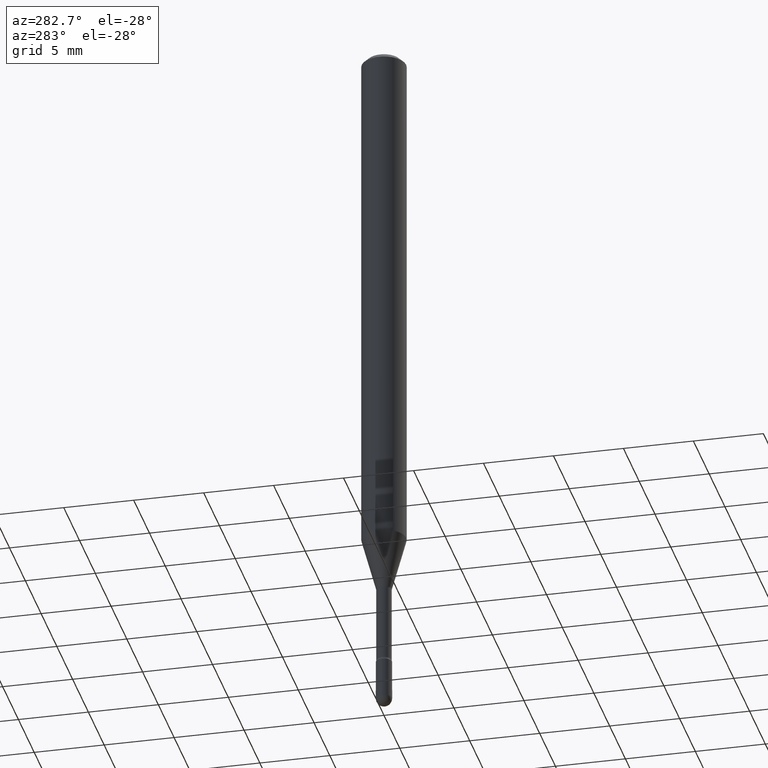
[diagram: clean part render]
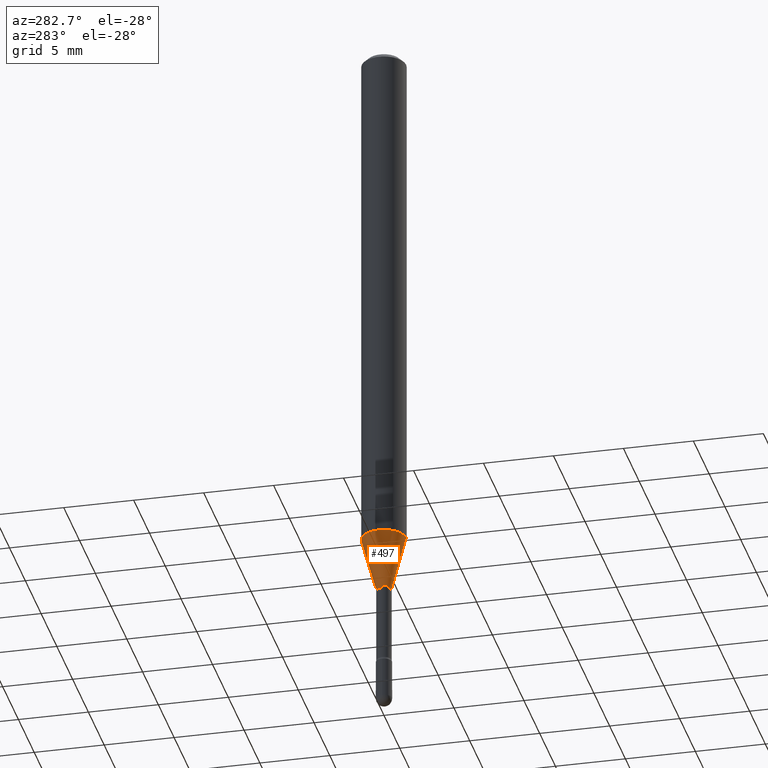
[diagram: same view with one face highlighted and labeled with its STEP entity id]
A machine part, auxiliary view. The second image highlights one B-rep face of the part: STEP entity #497.
In plain terms, the highlighted conical surface has half-angle 15 deg.
Its self-contained STEP definition (entity closure, byte-faithful):
#3 = VECTOR ( 'NONE', #277, 39.37007874015748143 ) ;
#18 = LINE ( 'NONE', #98, #3 ) ;
#36 = AXIS2_PLACEMENT_3D ( 'NONE', #146, #190, #547 ) ;
#50 = VERTEX_POINT ( 'NONE', #82 ) ;
#82 = CARTESIAN_POINT ( 'NONE',  ( 2.990003359772499771E-16, 0.02166111260565826632, -1.638092501787273170 ) ) ;
#88 = VERTEX_POINT ( 'NONE', #487 ) ;
#98 = CARTESIAN_POINT ( 'NONE',  ( 1.539114621044008531E-16, 0.02166111260565826632, -1.638092501787273170 ) ) ;
#109 = CARTESIAN_POINT ( 'NONE',  ( -1.512587408824710319E-16, -0.02166111260566970509, -1.638092501787273170 ) ) ;
#115 = CARTESIAN_POINT ( 'NONE',  ( 3.633106289342633259E-29, -5.187333314711248527E-15, -1.485679699107027130 ) ) ;
#146 = CARTESIAN_POINT ( 'NONE',  ( 4.005819137426080629E-29, -5.719491093677303486E-15, -1.638092501787273170 ) ) ;
#157 = EDGE_CURVE ( 'NONE', #50, #88, #18, .T. ) ;
#169 = VERTEX_POINT ( 'NONE', #408 ) ;
#184 = LINE ( 'NONE', #356, #314 ) ;
#186 = CIRCLE ( 'NONE', #36, 0.02166111260566398744 ) ;
#190 = DIRECTION ( 'NONE',  ( -2.445416930396453536E-29, 3.491555627925126489E-15, 1.000000000000000000 ) ) ;
#223 = ORIENTED_EDGE ( 'NONE', *, *, #253, .T. ) ;
#234 = DIRECTION ( 'NONE',  ( -6.982962677686265922E-15, -1.000000000000000000, 4.370956789862821150E-15 ) ) ;
#237 = DIRECTION ( 'NONE',  ( -2.445416930396453536E-29, 3.491555627925126489E-15, 1.000000000000000000 ) ) ;
#238 = EDGE_CURVE ( 'NONE', #50, #377, #186, .T. ) ;
#253 = EDGE_CURVE ( 'NONE', #377, #169, #184, .T. ) ;
#261 = DIRECTION ( 'NONE',  ( -2.445416930396453536E-29, 3.491555627925126489E-15, 1.000000000000000000 ) ) ;
#277 = DIRECTION ( 'NONE',  ( 1.839019923739595977E-15, 0.2588190451025243477, 0.9659258262890673130 ) ) ;
#314 = VECTOR ( 'NONE', #537, 39.37007874015748854 ) ;
#354 = ORIENTED_EDGE ( 'NONE', *, *, #403, .F. ) ;
#356 = CARTESIAN_POINT ( 'NONE',  ( -1.512587408824710319E-16, -0.02166111260566970509, -1.638092501787273170 ) ) ;
#369 = CONICAL_SURFACE ( 'NONE', #546, 0.02166111260566398744, 0.2617993877991496299 ) ;
#377 = VERTEX_POINT ( 'NONE', #109 ) ;
#384 = CARTESIAN_POINT ( 'NONE',  ( 4.005819137426080629E-29, -5.719491093677303486E-15, -1.638092501787273170 ) ) ;
#395 = CIRCLE ( 'NONE', #475, 0.06250000000000000000 ) ;
#402 = ORIENTED_EDGE ( 'NONE', *, *, #157, .F. ) ;
#403 = EDGE_CURVE ( 'NONE', #88, #169, #395, .T. ) ;
#408 = CARTESIAN_POINT ( 'NONE',  ( -4.364351673553553325E-16, -0.06250000000000520417, -1.485679699107026686 ) ) ;
#453 = EDGE_LOOP ( 'NONE', ( #402, #538, #223, #354 ) ) ;
#474 = FACE_OUTER_BOUND ( 'NONE', #453, .T. ) ;
#475 = AXIS2_PLACEMENT_3D ( 'NONE', #115, #237, #234 ) ;
#487 = CARTESIAN_POINT ( 'NONE',  ( 4.440892098500988052E-16, 0.06249999999999478889, -1.485679699107027352 ) ) ;
#497 = ADVANCED_FACE ( 'NONE', ( #474 ), #369, .T. ) ;
#537 = DIRECTION ( 'NONE',  ( -1.807323732225325801E-15, -0.2588190451025175753, 0.9659258262890690894 ) ) ;
#538 = ORIENTED_EDGE ( 'NONE', *, *, #238, .T. ) ;
#546 = AXIS2_PLACEMENT_3D ( 'NONE', #384, #261, #566 ) ;
#547 = DIRECTION ( 'NONE',  ( -6.982962677686265133E-15, -1.000000000000000000, 0.000000000000000000 ) ) ;
#566 = DIRECTION ( 'NONE',  ( -6.982962677686265133E-15, -1.000000000000000000, 0.000000000000000000 ) ) ;